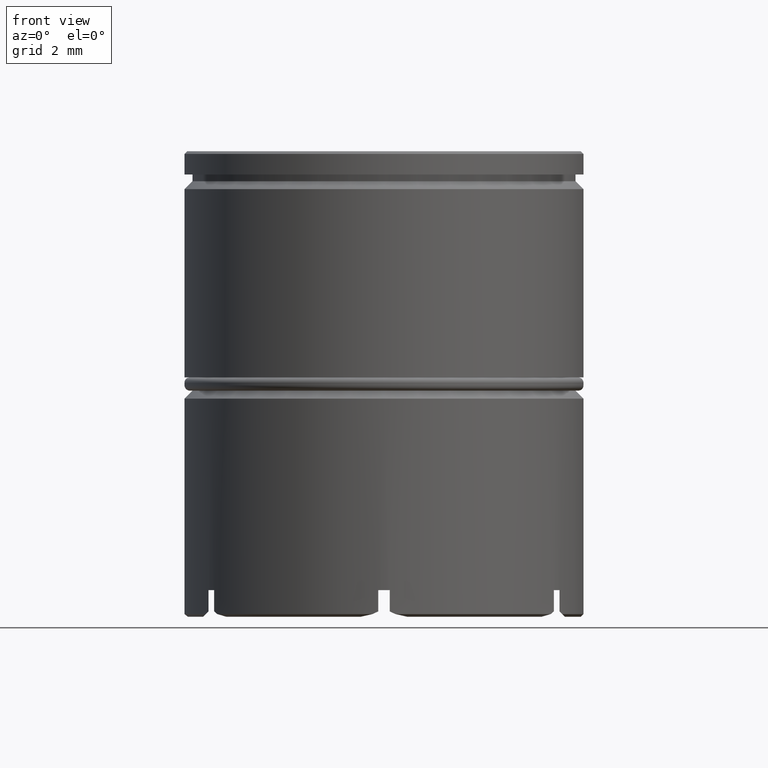
[diagram: clean part render]
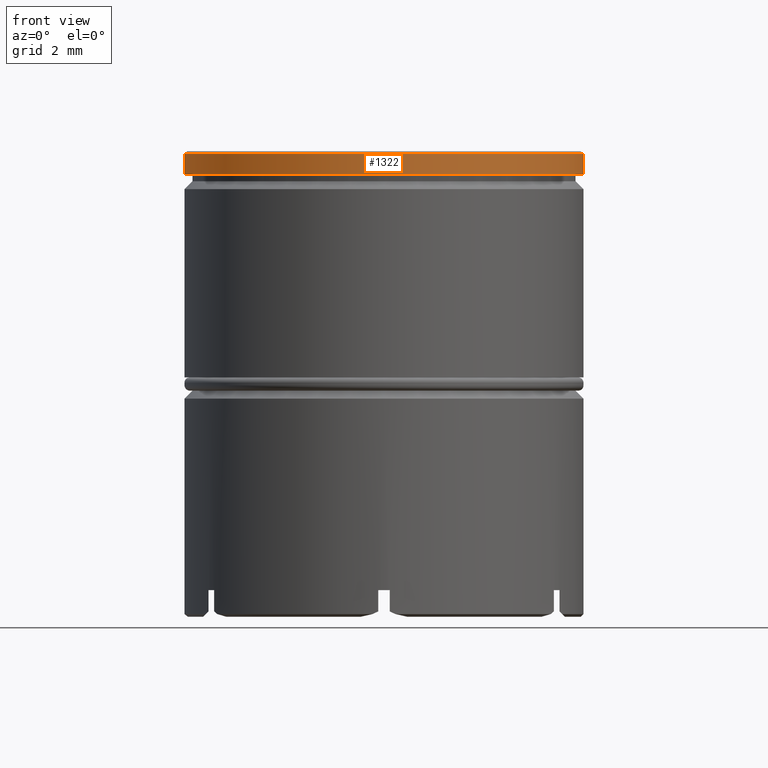
[diagram: same view with one face highlighted and labeled with its STEP entity id]
A machine part, front view. The second image highlights one B-rep face of the part: STEP entity #1322.
In plain terms, the highlighted cylindrical surface (partial cylindrical patch) has radius 7.5 mm, axis along (-0, -0, 1).
Its self-contained STEP definition (entity closure, byte-faithful):
#54 = CARTESIAN_POINT ( 'NONE',  ( 0.000000000000000000, 0.000000000000000000, -0.1000000000000037248 ) ) ;
#220 = ORIENTED_EDGE ( 'NONE', *, *, #1360, .T. ) ;
#276 = CARTESIAN_POINT ( 'NONE',  ( -7.500000000000000000, 9.184850993605147944E-16, -0.8749999999999998890 ) ) ;
#312 = AXIS2_PLACEMENT_3D ( 'NONE', #393, #1625, #738 ) ;
#376 = LINE ( 'NONE', #630, #416 ) ;
#393 = CARTESIAN_POINT ( 'NONE',  ( 0.000000000000000000, 0.000000000000000000, 0.000000000000000000 ) ) ;
#416 = VECTOR ( 'NONE', #1129, 1000.000000000000000 ) ;
#434 = EDGE_CURVE ( 'NONE', #1459, #1235, #1247, .T. ) ;
#521 = CARTESIAN_POINT ( 'NONE',  ( 7.500000000000000000, 0.000000000000000000, -0.1000000000000037248 ) ) ;
#556 = EDGE_CURVE ( 'NONE', #1459, #986, #835, .T. ) ;
#560 = DIRECTION ( 'NONE',  ( 0.000000000000000000, 0.000000000000000000, -1.000000000000000000 ) ) ;
#588 = AXIS2_PLACEMENT_3D ( 'NONE', #955, #1202, #1453 ) ;
#591 = CARTESIAN_POINT ( 'NONE',  ( -7.500000000000000000, 9.184850993605147944E-16, -0.1000000000000037248 ) ) ;
#606 = CIRCLE ( 'NONE', #709, 7.500000000000000000 ) ;
#630 = CARTESIAN_POINT ( 'NONE',  ( 7.500000000000000000, 0.000000000000000000, 0.000000000000000000 ) ) ;
#639 = FACE_OUTER_BOUND ( 'NONE', #675, .T. ) ;
#663 = ORIENTED_EDGE ( 'NONE', *, *, #742, .T. ) ;
#675 = EDGE_LOOP ( 'NONE', ( #730, #1439, #220, #663 ) ) ;
#709 = AXIS2_PLACEMENT_3D ( 'NONE', #54, #560, #1418 ) ;
#730 = ORIENTED_EDGE ( 'NONE', *, *, #556, .F. ) ;
#738 = DIRECTION ( 'NONE',  ( 1.000000000000000000, 0.000000000000000000, 0.000000000000000000 ) ) ;
#742 = EDGE_CURVE ( 'NONE', #1376, #986, #606, .T. ) ;
#835 = LINE ( 'NONE', #1361, #1157 ) ;
#955 = CARTESIAN_POINT ( 'NONE',  ( 0.000000000000000000, 0.000000000000000000, -0.8749999999999998890 ) ) ;
#986 = VERTEX_POINT ( 'NONE', #591 ) ;
#1102 = CARTESIAN_POINT ( 'NONE',  ( 7.500000000000000000, 0.000000000000000000, -0.8749999999999998890 ) ) ;
#1129 = DIRECTION ( 'NONE',  ( -0.000000000000000000, -0.000000000000000000, 1.000000000000000000 ) ) ;
#1140 = CYLINDRICAL_SURFACE ( 'NONE', #312, 7.500000000000000000 ) ;
#1157 = VECTOR ( 'NONE', #1343, 1000.000000000000000 ) ;
#1202 = DIRECTION ( 'NONE',  ( -0.000000000000000000, -0.000000000000000000, 1.000000000000000000 ) ) ;
#1235 = VERTEX_POINT ( 'NONE', #1102 ) ;
#1247 = CIRCLE ( 'NONE', #588, 7.500000000000000000 ) ;
#1322 = ADVANCED_FACE ( 'NONE', ( #639 ), #1140, .T. ) ;
#1343 = DIRECTION ( 'NONE',  ( -0.000000000000000000, -0.000000000000000000, 1.000000000000000000 ) ) ;
#1360 = EDGE_CURVE ( 'NONE', #1235, #1376, #376, .T. ) ;
#1361 = CARTESIAN_POINT ( 'NONE',  ( -7.500000000000000000, 9.184850993605147944E-16, 0.000000000000000000 ) ) ;
#1376 = VERTEX_POINT ( 'NONE', #521 ) ;
#1418 = DIRECTION ( 'NONE',  ( 1.000000000000000000, 0.000000000000000000, 0.000000000000000000 ) ) ;
#1439 = ORIENTED_EDGE ( 'NONE', *, *, #434, .T. ) ;
#1453 = DIRECTION ( 'NONE',  ( 1.000000000000000000, 0.000000000000000000, 0.000000000000000000 ) ) ;
#1459 = VERTEX_POINT ( 'NONE', #276 ) ;
#1625 = DIRECTION ( 'NONE',  ( -0.000000000000000000, -0.000000000000000000, 1.000000000000000000 ) ) ;